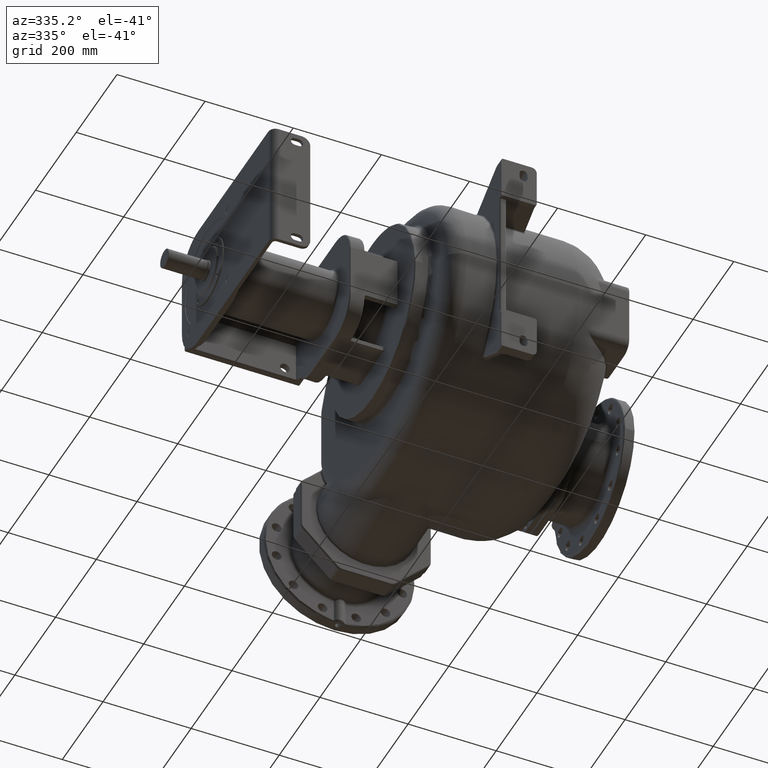
[diagram: clean part render]
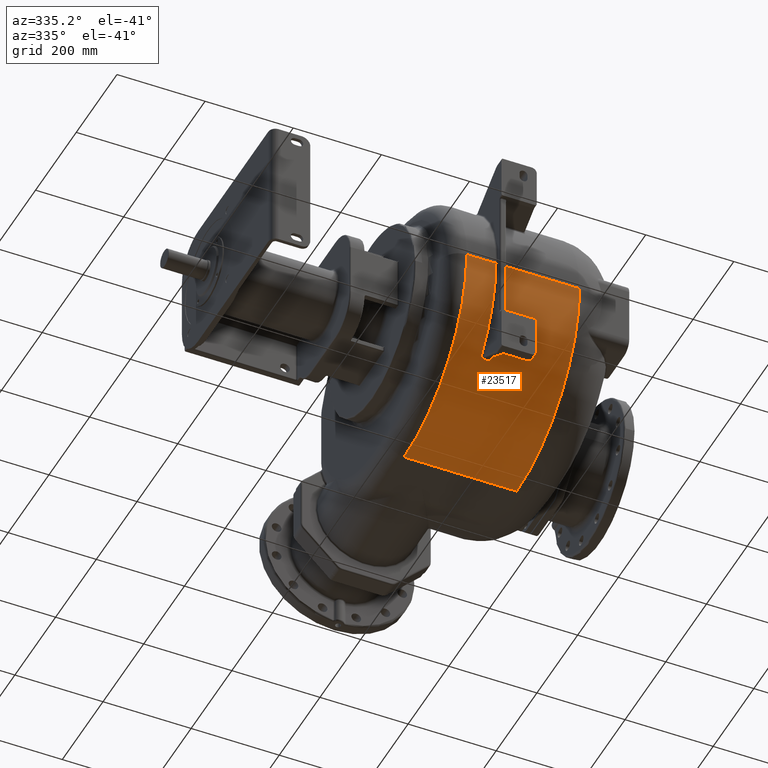
[diagram: same view with one face highlighted and labeled with its STEP entity id]
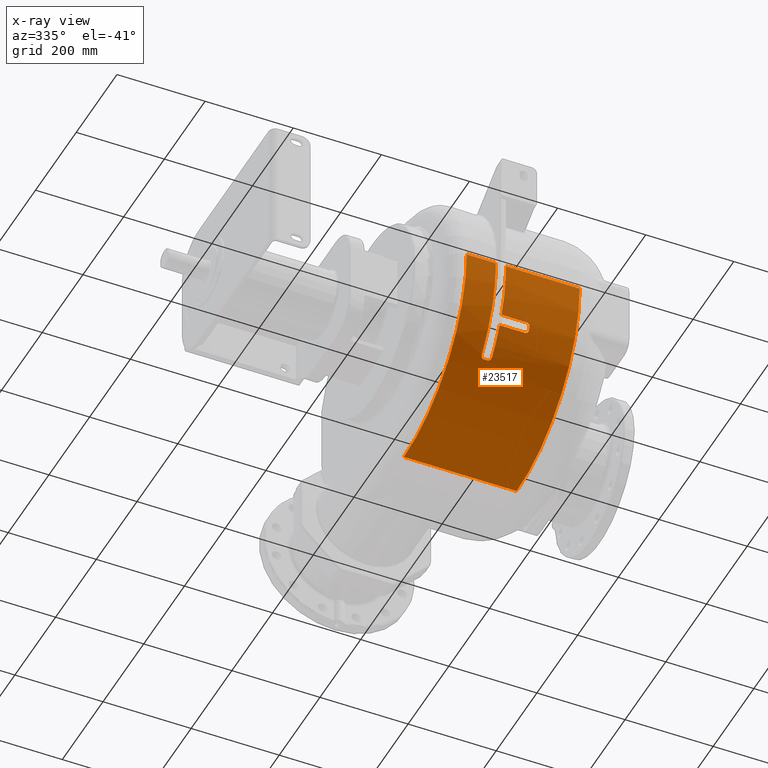
[diagram: x-ray of the same camera — body ghosted, the highlighted face saturated]
A machine part, auxiliary view. The second image highlights one B-rep face of the part: STEP entity #23517.
The next image is the same camera in x-ray: the body ghosted, the highlighted face saturated — about 0% of this face is hidden behind the body in this view.
In plain terms, the highlighted cylindrical surface (partial cylindrical patch) has radius 309 mm, axis along (-1, 0, 0).
Its self-contained STEP definition (entity closure, byte-faithful):
#2223=DIRECTION('',(1.E0,0.E0,1.704764275873E-13));
#2224=VECTOR('',#2223,6.6E1);
#2225=CARTESIAN_POINT('',(-1.2E2,1.9E1,-1.800000000002E1));
#2226=LINE('',#2225,#2224);
#2237=DIRECTION('',(1.E0,0.E0,2.257589989868E-12));
#2238=VECTOR('',#2237,1.67E2);
#2239=CARTESIAN_POINT('',(-3.1E1,1.9E1,-1.8E1));
#2240=LINE('',#2239,#2238);
#2469=CARTESIAN_POINT('',(-5.4E1,3.28E2,-1.8E1));
#2470=DIRECTION('',(1.E0,0.E0,0.E0));
#2471=DIRECTION('',(0.E0,-1.E0,0.E0));
#2472=AXIS2_PLACEMENT_3D('',#2469,#2470,#2471);
#2474=CARTESIAN_POINT('',(-5.399999999986E1,8.835595772138E1,
-2.130685058554E2));
#2475=CARTESIAN_POINT('',(-5.399999156534E1,8.841481091059E1,
-2.131408115894E2));
#2476=CARTESIAN_POINT('',(-5.399675593003E1,8.853249372939E1,
-2.132852884562E2));
#2477=CARTESIAN_POINT('',(-5.398205701778E1,8.870912995904E1,
-2.135016733683E2));
#2478=CARTESIAN_POINT('',(-5.395765386880E1,8.888550781133E1,
-2.137173618585E2));
#2479=CARTESIAN_POINT('',(-5.392355606713E1,8.906142636185E1,
-2.139320890222E2));
#2480=CARTESIAN_POINT('',(-5.387981653102E1,8.923663860155E1,
-2.141455646931E2));
#2481=CARTESIAN_POINT('',(-5.382648478516E1,8.941091065087E1,
-2.143575090091E2));
#2482=CARTESIAN_POINT('',(-5.376361662142E1,8.958400280055E1,
-2.145676392172E2));
#2483=CARTESIAN_POINT('',(-5.369120666852E1,8.975587798839E1,
-2.147759193359E2));
#2484=CARTESIAN_POINT('',(-5.360928981332E1,8.992650027017E1,
-2.149823150337E2));
#2485=CARTESIAN_POINT('',(-5.351784309173E1,9.009583145743E1,
-2.151867892150E2));
#2486=CARTESIAN_POINT('',(-5.341706753370E1,9.026341364083E1,
-2.153887994957E2));
#2487=CARTESIAN_POINT('',(-5.330722659305E1,9.042879052673E1,
-2.155878092957E2));
#2488=CARTESIAN_POINT('',(-5.318863955967E1,9.059151766868E1,
-2.157832998346E2));
#2489=CARTESIAN_POINT('',(-5.306146596725E1,9.075142005403E1,
-2.159750784729E2));
#2490=CARTESIAN_POINT('',(-5.292585070595E1,9.090832661535E1,
-2.161629581092E2));
#2491=CARTESIAN_POINT('',(-5.278193262026E1,9.106206279182E1,
-2.163467484906E2));
#2492=CARTESIAN_POINT('',(-5.262968499573E1,9.121262364757E1,
-2.165264625159E2));
#2493=CARTESIAN_POINT('',(-5.246913043487E1,9.136001797851E1,
-2.167021289591E2));
#2494=CARTESIAN_POINT('',(-5.230022814711E1,9.150423722581E1,
-2.168737552545E2));
#2495=CARTESIAN_POINT('',(-5.212339612603E1,9.164487191318E1,
-2.170408723902E2));
#2496=CARTESIAN_POINT('',(-5.193911047628E1,9.178152843524E1,
-2.172030326170E2));
#2497=CARTESIAN_POINT('',(-5.174789246441E1,9.191383774506E1,
-2.173598192691E2));
#2498=CARTESIAN_POINT('',(-5.154998684066E1,9.204165490578E1,
-2.175110823395E2));
#2499=CARTESIAN_POINT('',(-5.134562496958E1,9.216483558435E1,
-2.176566724981E2));
#2500=CARTESIAN_POINT('',(-5.113503514113E1,9.228323535916E1,
-2.177964403926E2));
#2501=CARTESIAN_POINT('',(-5.091815512385E1,9.239685874721E1,
-2.179304120976E2));
#2502=CARTESIAN_POINT('',(-5.069497283985E1,9.250573453774E1,
-2.180586412916E2));
#2503=CARTESIAN_POINT('',(-5.046542437813E1,9.260985919105E1,
-2.181811424983E2));
#2504=CARTESIAN_POINT('',(-5.023014616235E1,9.270890283110E1,
-2.182975460695E2));
#2505=CARTESIAN_POINT('',(-4.998982266577E1,9.280256807642E1,
-2.184075212069E2));
#2506=CARTESIAN_POINT('',(-4.974516962190E1,9.289059502344E1,
-2.185107813321E2));
#2507=CARTESIAN_POINT('',(-4.949648000869E1,9.297290410142E1,
-2.186072510600E2));
#2508=CARTESIAN_POINT('',(-4.924403468735E1,9.304941051987E1,
-2.186968479452E2));
#2509=CARTESIAN_POINT('',(-4.898810782815E1,9.312003137895E1,
-2.187794908641E2));
#2510=CARTESIAN_POINT('',(-4.872857136318E1,9.318476989655E1,
-2.188551983921E2));
#2511=CARTESIAN_POINT('',(-4.846533892211E1,9.324367158881E1,
-2.189240372344E2));
#2512=CARTESIAN_POINT('',(-4.819829583298E1,9.329674231470E1,
-2.189860263936E2));
#2513=CARTESIAN_POINT('',(-4.792805307302E1,9.334382423998E1,
-2.190409925827E2));
#2514=CARTESIAN_POINT('',(-4.765524303914E1,9.338478784120E1,
-2.190887946965E2));
#2515=CARTESIAN_POINT('',(-4.738050700662E1,9.341952798791E1,
-2.191293188751E2));
#2516=CARTESIAN_POINT('',(-4.710446626782E1,9.344796945240E1,
-2.191624854121E2));
#2517=CARTESIAN_POINT('',(-4.682773945900E1,9.347005760042E1,
-2.191882355325E2));
#2518=CARTESIAN_POINT('',(-4.655096744881E1,9.348577297039E1,
-2.192065567335E2));
#2519=CARTESIAN_POINT('',(-4.627470812227E1,9.349507906257E1,
-2.192173904525E2));
#2520=CARTESIAN_POINT('',(-4.609144887842E1,9.349713826641E1,
-2.192198204868E2));
#2521=CARTESIAN_POINT('',(-4.600000000754E1,9.349711771031E1,
-2.192198165205E2));
#2523=DIRECTION('',(1.E0,1.942336289200E-7,1.666494992010E-7));
#2524=VECTOR('',#2523,7.000000013961E0);
#2525=CARTESIAN_POINT('',(-4.600000000754E1,9.349711771031E1,
-2.192198165205E2));
#2526=LINE('',#2525,#2524);
#2527=CARTESIAN_POINT('',(-3.899999999358E1,9.349711906994E1,
-2.192198153539E2));
#2528=CARTESIAN_POINT('',(-3.890858753067E1,9.349713738297E1,
-2.192198184343E2));
#2529=CARTESIAN_POINT('',(-3.872540686318E1,9.349508445433E1,
-2.192173972108E2));
#2530=CARTESIAN_POINT('',(-3.844929399369E1,9.348578631917E1,
-2.192065721642E2));
#2531=CARTESIAN_POINT('',(-3.817266309256E1,9.347008818125E1,
-2.191882712141E2));
#2532=CARTESIAN_POINT('',(-3.789605194960E1,9.344801616658E1,
-2.191625398694E2));
#2533=CARTESIAN_POINT('',(-3.762007777396E1,9.341958936837E1,
-2.191293904650E2));
#2534=CARTESIAN_POINT('',(-3.734533754828E1,9.338485687517E1,
-2.190888752393E2));
#2535=CARTESIAN_POINT('',(-3.707243055955E1,9.334388662926E1,
-2.190410654062E2));
#2536=CARTESIAN_POINT('',(-3.680204448144E1,9.329678662960E1,
-2.189860781469E2));
#2537=CARTESIAN_POINT('',(-3.653485610965E1,9.324369375021E1,
-2.189240631319E2));
#2538=CARTESIAN_POINT('',(-3.627152589027E1,9.318477802198E1,
-2.188552078928E2));
#2539=CARTESIAN_POINT('',(-3.601194986218E1,9.312004369074E1,
-2.187795052634E2));
#2540=CARTESIAN_POINT('',(-3.575605228574E1,9.304944561143E1,
-2.186968890164E2));
#2541=CARTESIAN_POINT('',(-3.550371437585E1,9.297298085091E1,
-2.186073409629E2));
#2542=CARTESIAN_POINT('',(-3.525515138710E1,9.289072246529E1,
-2.185109307471E2));
#2543=CARTESIAN_POINT('',(-3.501059345384E1,9.280273871174E1,
-2.184077214528E2));
#2544=CARTESIAN_POINT('',(-3.477028338424E1,9.270908742369E1,
-2.182977629113E2));
#2545=CARTESIAN_POINT('',(-3.453496802727E1,9.261003552185E1,
-2.181813498493E2));
#2546=CARTESIAN_POINT('',(-3.430536238102E1,9.250589159125E1,
-2.180588261716E2));
#2547=CARTESIAN_POINT('',(-3.408213213074E1,9.239699972793E1,
-2.179305782378E2));
#2548=CARTESIAN_POINT('',(-3.386522024656E1,9.228337141825E1,
-2.177966009119E2));
#2549=CARTESIAN_POINT('',(-3.365462389953E1,9.216498298810E1,
-2.176568466014E2));
#2550=CARTESIAN_POINT('',(-3.345029438342E1,9.204183172267E1,
-2.175112914404E2));
#2551=CARTESIAN_POINT('',(-3.325242458518E1,9.191404789354E1,
-2.173600681151E2));
#2552=CARTESIAN_POINT('',(-3.306121881930E1,9.178175787966E1,
-2.172033046943E2));
#2553=CARTESIAN_POINT('',(-3.287689683816E1,9.164508552955E1,
-2.170411260696E2));
#2554=CARTESIAN_POINT('',(-3.270000334895E1,9.150441235674E1,
-2.168739635416E2));
#2555=CARTESIAN_POINT('',(-3.253103485552E1,9.136014698280E1,
-2.167022826194E2));
#2556=CARTESIAN_POINT('',(-3.237042873459E1,9.121271742600E1,
-2.165265743834E2));
#2557=CARTESIAN_POINT('',(-3.221814833343E1,9.106214213262E1,
-2.163468432695E2));
#2558=CARTESIAN_POINT('',(-3.207422011437E1,9.090841965878E1,
-2.161630694109E2));
#2559=CARTESIAN_POINT('',(-3.193862961297E1,9.075155899525E1,
-2.159752449403E2));
#2560=CARTESIAN_POINT('',(-3.181148857932E1,9.059171486740E1,
-2.157835365027E2));
#2561=CARTESIAN_POINT('',(-3.169292365810E1,9.042903580807E1,
-2.155881041891E2));
#2562=CARTESIAN_POINT('',(-3.158308104354E1,9.026367407995E1,
-2.153891131683E2));
#2563=CARTESIAN_POINT('',(-3.148229327246E1,9.009608777310E1,
-2.151870984634E2));
#2564=CARTESIAN_POINT('',(-3.139083314987E1,8.992674772848E1,
-2.149826141160E2));
#2565=CARTESIAN_POINT('',(-3.130890663461E1,8.975612454071E1,
-2.147762178444E2));
#2566=CARTESIAN_POINT('',(-3.123648628421E1,8.958425362082E1,
-2.145679434292E2));
#2567=CARTESIAN_POINT('',(-3.117360538023E1,8.941116987352E1,
-2.143578239822E2));
#2568=CARTESIAN_POINT('',(-3.112026628650E1,8.923690880486E1,
-2.141458935734E2));
#2569=CARTESIAN_POINT('',(-3.107651744325E1,8.906170041387E1,
-2.139324233201E2));
#2570=CARTESIAN_POINT('',(-3.104240796098E1,8.888576839401E1,
-2.137176799010E2));
#2571=CARTESIAN_POINT('',(-3.101798585089E1,8.870934779305E1,
-2.135019413042E2));
#2572=CARTESIAN_POINT('',(-3.100328199450E1,8.853263495508E1,
-2.132854569774E2));
#2573=CARTESIAN_POINT('',(-3.100000983156E1,8.841485740036E1,
-2.131408789155E2));
#2574=CARTESIAN_POINT('',(-3.100000000004E1,8.835595343053E1,
-2.130685093478E2));
#2576=CARTESIAN_POINT('',(-3.1E1,3.28E2,-1.8E1));
#2577=DIRECTION('',(-1.E0,0.E0,0.E0));
#2578=DIRECTION('',(0.E0,-7.755471071625E-1,-6.312896994027E-1));
#2579=AXIS2_PLACEMENT_3D('',#2576,#2577,#2578);
#2581=DIRECTION('',(1.E0,-5.077191096444E-8,-2.486302719285E-8));
#2582=VECTOR('',#2581,5.699999999948E1);
#2583=CARTESIAN_POINT('',(-3.1E1,5.048785932712E1,-1.538970631734E2));
#2584=LINE('',#2583,#2582);
#2585=CARTESIAN_POINT('',(2.599999999948E1,5.048785643312E1,-1.538970645906E2));
#2586=CARTESIAN_POINT('',(2.609390891836E1,5.048784657394E1,-1.538970616336E2));
#2587=CARTESIAN_POINT('',(2.628156321064E1,5.048642146706E1,-1.538941156413E2));
#2588=CARTESIAN_POINT('',(2.656273477044E1,5.047993447524E1,-1.538808823282E2));
#2589=CARTESIAN_POINT('',(2.684305415367E1,5.046917543255E1,-1.538589028165E2));
#2590=CARTESIAN_POINT('',(2.712217459053E1,5.045415302725E1,-1.538282127888E2));
#2591=CARTESIAN_POINT('',(2.739969960899E1,5.043489998915E1,-1.537888656055E2));
#2592=CARTESIAN_POINT('',(2.767525034542E1,5.041144796038E1,-1.537409183042E2));
#2593=CARTESIAN_POINT('',(2.794844617503E1,5.038383436095E1,-1.536844357106E2));
#2594=CARTESIAN_POINT('',(2.821923297440E1,5.035206447611E1,-1.536194155555E2));
#2595=CARTESIAN_POINT('',(2.848756238967E1,5.031616520868E1,-1.535458977169E2));
#2596=CARTESIAN_POINT('',(2.875338188973E1,5.027614089214E1,-1.534638739492E2));
#2597=CARTESIAN_POINT('',(2.901601988448E1,5.023208759497E1,-1.533735222016E2));
#2598=CARTESIAN_POINT('',(2.927481052051E1,5.018412692243E1,-1.532750715618E2));
#2599=CARTESIAN_POINT('',(2.952910998141E1,5.013240234222E1,-1.531687950953E2));
#2600=CARTESIAN_POINT('',(2.977861610423E1,5.007700449697E1,-1.530548565481E2));
#2601=CARTESIAN_POINT('',(3.002303173764E1,5.001802189915E1,-1.529334143037E2));
#2602=CARTESIAN_POINT('',(3.026206600601E1,4.995554477473E1,-1.528046295157E2));
#2603=CARTESIAN_POINT('',(3.049572523330E1,4.988957541010E1,-1.526684809989E2));
#2604=CARTESIAN_POINT('',(3.072404734248E1,4.982013695994E1,-1.525249891547E2));
#2605=CARTESIAN_POINT('',(3.094704615704E1,4.974723180670E1,-1.523741299307E2));
#2606=CARTESIAN_POINT('',(3.116419014515E1,4.967103275135E1,-1.522162310479E2));
#2607=CARTESIAN_POINT('',(3.137497009979E1,4.959173214441E1,-1.520516614715E2));
#2608=CARTESIAN_POINT('',(3.157890759449E1,4.950953640969E1,-1.518808204894E2));
#2609=CARTESIAN_POINT('',(3.177574038121E1,4.942458313504E1,-1.517039654329E2));
#2610=CARTESIAN_POINT('',(3.196521084501E1,4.933700972295E1,-1.515213538447E2));
#2611=CARTESIAN_POINT('',(3.214707633791E1,4.924695502319E1,-1.513332472995E2));
#2612=CARTESIAN_POINT('',(3.232134413215E1,4.915441822987E1,-1.511396158605E2));
#2613=CARTESIAN_POINT('',(3.248806042384E1,4.905941266331E1,-1.509404581760E2));
#2614=CARTESIAN_POINT('',(3.264723795366E1,4.896193887622E1,-1.507357450621E2));
#2615=CARTESIAN_POINT('',(3.279849275758E1,4.886222644547E1,-1.505259286650E2));
#2616=CARTESIAN_POINT('',(3.294147801037E1,4.876051750662E1,-1.503114906558E2));
#2617=CARTESIAN_POINT('',(3.307588427756E1,4.865706208828E1,-1.500929327027E2));
#2618=CARTESIAN_POINT('',(3.320155377810E1,4.855201875124E1,-1.498705663038E2));
#2619=CARTESIAN_POINT('',(3.331833132099E1,4.844554509689E1,-1.496447029582E2));
#2620=CARTESIAN_POINT('',(3.342607743702E1,4.833779702128E1,-1.494156530773E2));
#2621=CARTESIAN_POINT('',(3.352478475556E1,4.822876721294E1,-1.491833813645E2));
#2622=CARTESIAN_POINT('',(3.361449261709E1,4.811845715143E1,-1.489478706494E2));
#2623=CARTESIAN_POINT('',(3.369520945431E1,4.800686265323E1,-1.487090910313E2));
#2624=CARTESIAN_POINT('',(3.376676236174E1,4.789418886677E1,-1.484674614765E2));
#2625=CARTESIAN_POINT('',(3.382900564440E1,4.778064484692E1,-1.482234132176E2));
#2626=CARTESIAN_POINT('',(3.388181270685E1,4.766644135999E1,-1.479773848758E2));
#2627=CARTESIAN_POINT('',(3.392506628314E1,4.755183284439E1,-1.477299133594E2));
#2628=CARTESIAN_POINT('',(3.395868453739E1,4.743707147348E1,-1.474815360259E2));
#2629=CARTESIAN_POINT('',(3.398263008089E1,4.732241767941E1,-1.472328117477E2));
#2630=CARTESIAN_POINT('',(3.399687285221E1,4.720809520370E1,-1.469842301964E2));
#2631=CARTESIAN_POINT('',(3.400000898124E1,4.713233306321E1,-1.468191005343E2));
#2632=CARTESIAN_POINT('',(3.399999999999E1,4.709453980068E1,-1.467366450254E2));
#2634=CARTESIAN_POINT('',(3.4E1,3.28E2,-1.8E1));
#2635=DIRECTION('',(-1.E0,0.E0,0.E0));
#2636=DIRECTION('',(0.E0,-9.090791528326E-1,-4.166234437537E-1));
#2637=AXIS2_PLACEMENT_3D('',#2634,#2635,#2636);
#2639=CARTESIAN_POINT('',(3.399999999995E1,4.427069090403E1,-1.403873886624E2));
#2640=CARTESIAN_POINT('',(3.399999057235E1,4.423409844486E1,-1.403025672519E2));
#2641=CARTESIAN_POINT('',(3.399675184597E1,4.416104554308E1,-1.401330225207E2));
#2642=CARTESIAN_POINT('',(3.398216014192E1,4.405181353134E1,-1.398788431193E2));
#2643=CARTESIAN_POINT('',(3.395793113975E1,4.394310180972E1,-1.396252605284E2));
#2644=CARTESIAN_POINT('',(3.392409014958E1,4.383503702475E1,-1.393725621492E2));
#2645=CARTESIAN_POINT('',(3.388068581058E1,4.372775634763E1,-1.391210810111E2));
#2646=CARTESIAN_POINT('',(3.382776550214E1,4.362139148253E1,-1.388711356118E2));
#2647=CARTESIAN_POINT('',(3.376537699113E1,4.351607514249E1,-1.386230513553E2));
#2648=CARTESIAN_POINT('',(3.369350920641E1,4.341181008659E1,-1.383768490876E2));
#2649=CARTESIAN_POINT('',(3.361218723212E1,4.330859826922E1,-1.381325478123E2));
#2650=CARTESIAN_POINT('',(3.352137209582E1,4.320644387011E1,-1.378901714735E2));
#2651=CARTESIAN_POINT('',(3.342126382297E1,4.310562321995E1,-1.376503921383E2));
#2652=CARTESIAN_POINT('',(3.331212777963E1,4.300640822060E1,-1.374138778198E2));
#2653=CARTESIAN_POINT('',(3.319428844059E1,4.290906054898E1,-1.371812781301E2));
#2654=CARTESIAN_POINT('',(3.306789385514E1,4.281366337168E1,-1.369528202416E2));
#2655=CARTESIAN_POINT('',(3.293307427769E1,4.272029700150E1,-1.367287256610E2));
#2656=CARTESIAN_POINT('',(3.278994981831E1,4.262904455039E1,-1.365092242071E2));
#2657=CARTESIAN_POINT('',(3.263848421544E1,4.253988923404E1,-1.362943059411E2));
#2658=CARTESIAN_POINT('',(3.247868592720E1,4.245280607616E1,-1.360839402753E2));
#2659=CARTESIAN_POINT('',(3.231049766448E1,4.236778254129E1,-1.358781255359E2));
#2660=CARTESIAN_POINT('',(3.213433082504E1,4.228504782445E1,-1.356774463277E2));
#2661=CARTESIAN_POINT('',(3.195065544500E1,4.220481952984E1,-1.354824632526E2));
#2662=CARTESIAN_POINT('',(3.175998880143E1,4.212729955013E1,-1.352937020756E2));
#2663=CARTESIAN_POINT('',(3.156256508791E1,4.205255447320E1,-1.351113610012E2));
#2664=CARTESIAN_POINT('',(3.135860459643E1,4.198065064107E1,-1.349356376093E2));
#2665=CARTESIAN_POINT('',(3.114832389853E1,4.191165587293E1,-1.347667332813E2));
#2666=CARTESIAN_POINT('',(3.093167132303E1,4.184555495475E1,-1.346046455565E2));
#2667=CARTESIAN_POINT('',(3.070863866341E1,4.178231911195E1,-1.344493371155E2));
#2668=CARTESIAN_POINT('',(3.047916816375E1,4.172194002312E1,-1.343008191490E2));
#2669=CARTESIAN_POINT('',(3.024387742361E1,4.166459117135E1,-1.341595497012E2));
#2670=CARTESIAN_POINT('',(3.000342983321E1,4.161042704991E1,-1.340259411626E2));
#2671=CARTESIAN_POINT('',(2.975852136816E1,4.155958134637E1,-1.339003549888E2));
#2672=CARTESIAN_POINT('',(2.950943874495E1,4.151208725618E1,-1.337829038730E2));
#2673=CARTESIAN_POINT('',(2.925645723970E1,4.146798148698E1,-1.336737076343E2));
#2674=CARTESIAN_POINT('',(2.899984688991E1,4.142730155274E1,-1.335728866051E2));
#2675=CARTESIAN_POINT('',(2.873952610336E1,4.139004055338E1,-1.334804492535E2));
#2676=CARTESIAN_POINT('',(2.847544938204E1,4.135616894449E1,-1.333963456501E2));
#2677=CARTESIAN_POINT('',(2.820754496362E1,4.132568100699E1,-1.333205827532E2));
#2678=CARTESIAN_POINT('',(2.793641228946E1,4.129865669461E1,-1.332533785656E2));
#2679=CARTESIAN_POINT('',(2.766267069335E1,4.127516092012E1,-1.331949121475E2));
#2680=CARTESIAN_POINT('',(2.738694905121E1,4.125524573424E1,-1.331453284645E2));
#2681=CARTESIAN_POINT('',(2.710984893473E1,4.123894676846E1,-1.331047301738E2));
#2682=CARTESIAN_POINT('',(2.683196986892E1,4.122629043531E1,-1.330731921597E2));
#2683=CARTESIAN_POINT('',(2.655393327776E1,4.121728186824E1,-1.330507433302E2));
#2684=CARTESIAN_POINT('',(2.627628071874E1,4.121194890392E1,-1.330374314400E2));
#2685=CARTESIAN_POINT('',(2.609198932139E1,4.121074712965E1,-1.330344783376E2));
#2686=CARTESIAN_POINT('',(2.600000000511E1,4.121074188092E1,-1.330344942838E2));
#2688=DIRECTION('',(-9.999999999999E-1,3.543107279064E-7,1.421229679157E-7));
#2689=VECTOR('',#2688,5.700000000512E1);
#2690=CARTESIAN_POINT('',(2.600000000511E1,4.121074188092E1,-1.330344942838E2));
#2691=LINE('',#2690,#2689);
#2692=CARTESIAN_POINT('',(-3.1E1,3.28E2,-1.8E1));
#2693=DIRECTION('',(-1.E0,0.E0,0.E0));
#2694=DIRECTION('',(0.E0,-9.281205110789E-1,-3.722798905591E-1));
#2695=AXIS2_PLACEMENT_3D('',#2692,#2693,#2694);
#2697=CARTESIAN_POINT('',(1.36E2,3.28E2,-1.8E1));
#2698=DIRECTION('',(1.E0,0.E0,0.E0));
#2699=DIRECTION('',(0.E0,-1.E0,0.E0));
#2700=AXIS2_PLACEMENT_3D('',#2697,#2698,#2699);
#2702=DIRECTION('',(1.E0,2.440270208126E-13,0.E0));
#2703=VECTOR('',#2702,2.56E2);
#2704=CARTESIAN_POINT('',(-1.2E2,3.28E2,-3.27E2));
#2705=LINE('',#2704,#2703);
#2706=CARTESIAN_POINT('',(-1.2E2,3.28E2,-1.8E1));
#2707=DIRECTION('',(-1.E0,0.E0,0.E0));
#2708=DIRECTION('',(0.E0,0.E0,-1.E0));
#2709=AXIS2_PLACEMENT_3D('',#2706,#2707,#2708);
#20037=CARTESIAN_POINT('',(-1.2E2,3.28E2,-3.27E2));
#20038=CARTESIAN_POINT('',(1.36E2,3.280000000001E2,-3.27E2));
#20039=VERTEX_POINT('',#20037);
#20040=VERTEX_POINT('',#20038);
#20105=CARTESIAN_POINT('',(1.36E2,1.9E1,-1.8E1));
#20106=VERTEX_POINT('',#20105);
#20320=CARTESIAN_POINT('',(-1.2E2,1.9E1,-1.8E1));
#20321=VERTEX_POINT('',#20320);
#20435=CARTESIAN_POINT('',(-5.4E1,1.9E1,-1.8E1));
#20436=VERTEX_POINT('',#20435);
#20437=CARTESIAN_POINT('',(-3.1E1,1.9E1,-1.8E1));
#20438=VERTEX_POINT('',#20437);
#20614=CARTESIAN_POINT('',(-5.4E1,8.835594388680E1,-2.130685171154E2));
#20615=VERTEX_POINT('',#20614);
#20616=VERTEX_POINT('',#2521);
#20617=CARTESIAN_POINT('',(-3.899999999358E1,9.349711906994E1,
-2.192198153539E2));
#20618=VERTEX_POINT('',#20617);
#20619=VERTEX_POINT('',#2574);
#20620=CARTESIAN_POINT('',(-3.1E1,5.048785932711E1,-1.538970631734E2));
#20621=VERTEX_POINT('',#20620);
#20626=CARTESIAN_POINT('',(2.599999999948E1,5.048785643312E1,
-1.538970645906E2));
#20627=VERTEX_POINT('',#20626);
#20630=VERTEX_POINT('',#2632);
#20631=CARTESIAN_POINT('',(3.4E1,4.427068160884E1,-1.403873926730E2));
#20632=VERTEX_POINT('',#20631);
#20635=VERTEX_POINT('',#2686);
#20637=CARTESIAN_POINT('',(-3.1E1,4.121076207663E1,-1.330344861828E2));
#20638=VERTEX_POINT('',#20637);
#23482=CARTESIAN_POINT('',(-1.62E2,3.28E2,-1.8E1));
#23483=DIRECTION('',(-1.E0,0.E0,0.E0));
#23484=DIRECTION('',(0.E0,0.E0,1.E0));
#23485=AXIS2_PLACEMENT_3D('',#23482,#23483,#23484);
#23486=CYLINDRICAL_SURFACE('',#23485,3.09E2);
#23487=ORIENTED_EDGE('',*,*,#23448,.T.);
#23489=ORIENTED_EDGE('',*,*,#23488,.T.);
#23491=ORIENTED_EDGE('',*,*,#23490,.T.);
#23493=ORIENTED_EDGE('',*,*,#23492,.T.);
#23495=ORIENTED_EDGE('',*,*,#23494,.T.);
#23497=ORIENTED_EDGE('',*,*,#23496,.T.);
#23499=ORIENTED_EDGE('',*,*,#23498,.T.);
#23501=ORIENTED_EDGE('',*,*,#23500,.T.);
#23503=ORIENTED_EDGE('',*,*,#23502,.T.);
#23505=ORIENTED_EDGE('',*,*,#23504,.T.);
#23507=ORIENTED_EDGE('',*,*,#23506,.T.);
#23509=ORIENTED_EDGE('',*,*,#23508,.T.);
#23510=ORIENTED_EDGE('',*,*,#23455,.T.);
#23512=ORIENTED_EDGE('',*,*,#23511,.T.);
#23513=ORIENTED_EDGE('',*,*,#23136,.F.);
#23514=ORIENTED_EDGE('',*,*,#23331,.T.);
#23515=EDGE_LOOP('',(#23487,#23489,#23491,#23493,#23495,#23497,#23499,#23501,
#23503,#23505,#23507,#23509,#23510,#23512,#23513,#23514));
#23516=FACE_OUTER_BOUND('',#23515,.F.);
#23517=ADVANCED_FACE('',(#23516),#23486,.T.);
#2473=CIRCLE('',#2472,3.09E2);
#2522=B_SPLINE_CURVE_WITH_KNOTS('',3,(#2474,#2475,#2476,#2477,#2478,#2479,#2480,
#2481,#2482,#2483,#2484,#2485,#2486,#2487,#2488,#2489,#2490,#2491,#2492,#2493,
#2494,#2495,#2496,#2497,#2498,#2499,#2500,#2501,#2502,#2503,#2504,#2505,#2506,
#2507,#2508,#2509,#2510,#2511,#2512,#2513,#2514,#2515,#2516,#2517,#2518,#2519,
#2520,#2521),.UNSPECIFIED.,.F.,.F.,(4,1,1,1,1,1,1,1,1,1,1,1,1,1,1,1,1,1,1,1,1,1,
1,1,1,1,1,1,1,1,1,1,1,1,1,1,1,1,1,1,1,1,1,1,1,4),(0.E0,2.222222222222E-2,
4.444444444444E-2,6.666666666667E-2,8.888888888889E-2,1.111111111111E-1,
1.333333333333E-1,1.555555555556E-1,1.777777777778E-1,2.E-1,2.222222222222E-1,
2.444444444444E-1,2.666666666667E-1,2.888888888889E-1,3.111111111111E-1,
3.333333333333E-1,3.555555555556E-1,3.777777777778E-1,4.E-1,4.222222222222E-1,
4.444444444444E-1,4.666666666667E-1,4.888888888889E-1,5.111111111111E-1,
5.333333333333E-1,5.555555555556E-1,5.777777777778E-1,6.E-1,6.222222222222E-1,
6.444444444444E-1,6.666666666667E-1,6.888888888889E-1,7.111111111111E-1,
7.333333333333E-1,7.555555555556E-1,7.777777777778E-1,8.E-1,8.222222222222E-1,
8.444444444444E-1,8.666666666667E-1,8.888888888889E-1,9.111111111111E-1,
9.333333333333E-1,9.555555555556E-1,9.777777777778E-1,1.E0),.UNSPECIFIED.);
#2575=B_SPLINE_CURVE_WITH_KNOTS('',3,(#2527,#2528,#2529,#2530,#2531,#2532,#2533,
#2534,#2535,#2536,#2537,#2538,#2539,#2540,#2541,#2542,#2543,#2544,#2545,#2546,
#2547,#2548,#2549,#2550,#2551,#2552,#2553,#2554,#2555,#2556,#2557,#2558,#2559,
#2560,#2561,#2562,#2563,#2564,#2565,#2566,#2567,#2568,#2569,#2570,#2571,#2572,
#2573,#2574),.UNSPECIFIED.,.F.,.F.,(4,1,1,1,1,1,1,1,1,1,1,1,1,1,1,1,1,1,1,1,1,1,
1,1,1,1,1,1,1,1,1,1,1,1,1,1,1,1,1,1,1,1,1,1,1,4),(0.E0,2.222222222222E-2,
4.444444444444E-2,6.666666666667E-2,8.888888888889E-2,1.111111111111E-1,
1.333333333333E-1,1.555555555556E-1,1.777777777778E-1,2.E-1,2.222222222222E-1,
2.444444444444E-1,2.666666666667E-1,2.888888888889E-1,3.111111111111E-1,
3.333333333333E-1,3.555555555556E-1,3.777777777778E-1,4.E-1,4.222222222222E-1,
4.444444444444E-1,4.666666666667E-1,4.888888888889E-1,5.111111111111E-1,
5.333333333333E-1,5.555555555556E-1,5.777777777778E-1,6.E-1,6.222222222222E-1,
6.444444444444E-1,6.666666666667E-1,6.888888888889E-1,7.111111111111E-1,
7.333333333333E-1,7.555555555556E-1,7.777777777778E-1,8.E-1,8.222222222222E-1,
8.444444444444E-1,8.666666666667E-1,8.888888888889E-1,9.111111111111E-1,
9.333333333333E-1,9.555555555556E-1,9.777777777778E-1,1.E0),.UNSPECIFIED.);
#2580=CIRCLE('',#2579,3.09E2);
#2633=B_SPLINE_CURVE_WITH_KNOTS('',3,(#2585,#2586,#2587,#2588,#2589,#2590,#2591,
#2592,#2593,#2594,#2595,#2596,#2597,#2598,#2599,#2600,#2601,#2602,#2603,#2604,
#2605,#2606,#2607,#2608,#2609,#2610,#2611,#2612,#2613,#2614,#2615,#2616,#2617,
#2618,#2619,#2620,#2621,#2622,#2623,#2624,#2625,#2626,#2627,#2628,#2629,#2630,
#2631,#2632),.UNSPECIFIED.,.F.,.F.,(4,1,1,1,1,1,1,1,1,1,1,1,1,1,1,1,1,1,1,1,1,1,
1,1,1,1,1,1,1,1,1,1,1,1,1,1,1,1,1,1,1,1,1,1,1,4),(0.E0,2.222222222222E-2,
4.444444444444E-2,6.666666666667E-2,8.888888888889E-2,1.111111111111E-1,
1.333333333333E-1,1.555555555556E-1,1.777777777778E-1,2.E-1,2.222222222222E-1,
2.444444444444E-1,2.666666666667E-1,2.888888888889E-1,3.111111111111E-1,
3.333333333333E-1,3.555555555556E-1,3.777777777778E-1,4.E-1,4.222222222222E-1,
4.444444444444E-1,4.666666666667E-1,4.888888888889E-1,5.111111111111E-1,
5.333333333333E-1,5.555555555556E-1,5.777777777778E-1,6.E-1,6.222222222222E-1,
6.444444444444E-1,6.666666666667E-1,6.888888888889E-1,7.111111111111E-1,
7.333333333333E-1,7.555555555556E-1,7.777777777778E-1,8.E-1,8.222222222222E-1,
8.444444444444E-1,8.666666666667E-1,8.888888888889E-1,9.111111111111E-1,
9.333333333333E-1,9.555555555556E-1,9.777777777778E-1,1.E0),.UNSPECIFIED.);
#2638=CIRCLE('',#2637,3.09E2);
#2687=B_SPLINE_CURVE_WITH_KNOTS('',3,(#2639,#2640,#2641,#2642,#2643,#2644,#2645,
#2646,#2647,#2648,#2649,#2650,#2651,#2652,#2653,#2654,#2655,#2656,#2657,#2658,
#2659,#2660,#2661,#2662,#2663,#2664,#2665,#2666,#2667,#2668,#2669,#2670,#2671,
#2672,#2673,#2674,#2675,#2676,#2677,#2678,#2679,#2680,#2681,#2682,#2683,#2684,
#2685,#2686),.UNSPECIFIED.,.F.,.F.,(4,1,1,1,1,1,1,1,1,1,1,1,1,1,1,1,1,1,1,1,1,1,
1,1,1,1,1,1,1,1,1,1,1,1,1,1,1,1,1,1,1,1,1,1,1,4),(0.E0,2.222222222222E-2,
4.444444444444E-2,6.666666666667E-2,8.888888888889E-2,1.111111111111E-1,
1.333333333333E-1,1.555555555556E-1,1.777777777778E-1,2.E-1,2.222222222222E-1,
2.444444444444E-1,2.666666666667E-1,2.888888888889E-1,3.111111111111E-1,
3.333333333333E-1,3.555555555556E-1,3.777777777778E-1,4.E-1,4.222222222222E-1,
4.444444444444E-1,4.666666666667E-1,4.888888888889E-1,5.111111111111E-1,
5.333333333333E-1,5.555555555556E-1,5.777777777778E-1,6.E-1,6.222222222222E-1,
6.444444444444E-1,6.666666666667E-1,6.888888888889E-1,7.111111111111E-1,
7.333333333333E-1,7.555555555556E-1,7.777777777778E-1,8.E-1,8.222222222222E-1,
8.444444444444E-1,8.666666666667E-1,8.888888888889E-1,9.111111111111E-1,
9.333333333333E-1,9.555555555556E-1,9.777777777778E-1,1.E0),.UNSPECIFIED.);
#2696=CIRCLE('',#2695,3.09E2);
#2701=CIRCLE('',#2700,3.09E2);
#2710=CIRCLE('',#2709,3.09E2);
#23136=EDGE_CURVE('',#20039,#20040,#2705,.T.);
#23331=EDGE_CURVE('',#20039,#20321,#2710,.T.);
#23448=EDGE_CURVE('',#20321,#20436,#2226,.T.);
#23455=EDGE_CURVE('',#20438,#20106,#2240,.T.);
#23488=EDGE_CURVE('',#20436,#20615,#2473,.T.);
#23490=EDGE_CURVE('',#20615,#20616,#2522,.T.);
#23492=EDGE_CURVE('',#20616,#20618,#2526,.T.);
#23494=EDGE_CURVE('',#20618,#20619,#2575,.T.);
#23496=EDGE_CURVE('',#20619,#20621,#2580,.T.);
#23498=EDGE_CURVE('',#20621,#20627,#2584,.T.);
#23500=EDGE_CURVE('',#20627,#20630,#2633,.T.);
#23502=EDGE_CURVE('',#20630,#20632,#2638,.T.);
#23504=EDGE_CURVE('',#20632,#20635,#2687,.T.);
#23506=EDGE_CURVE('',#20635,#20638,#2691,.T.);
#23508=EDGE_CURVE('',#20638,#20438,#2696,.T.);
#23511=EDGE_CURVE('',#20106,#20040,#2701,.T.);